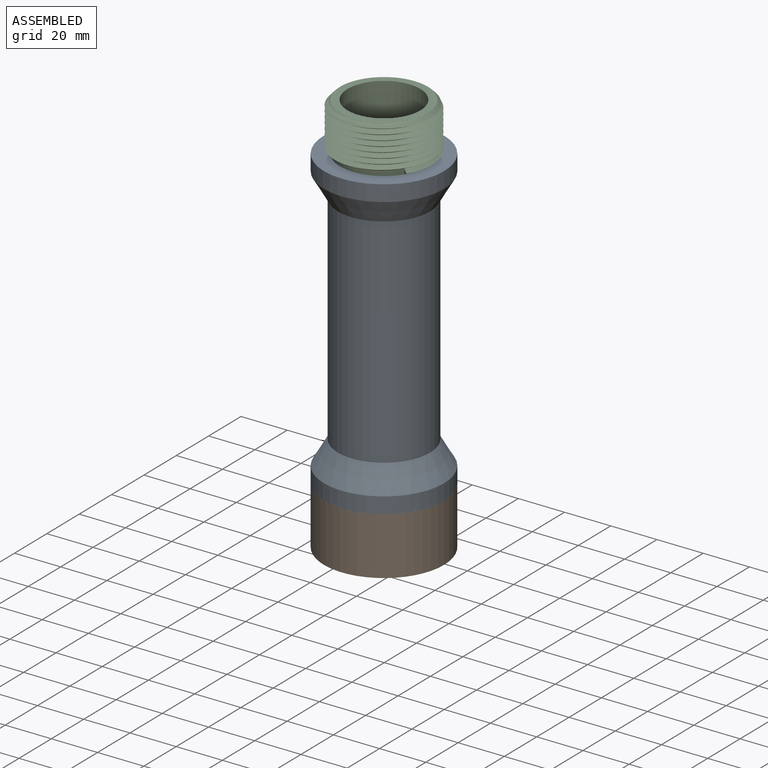
[diagram: assembled view]
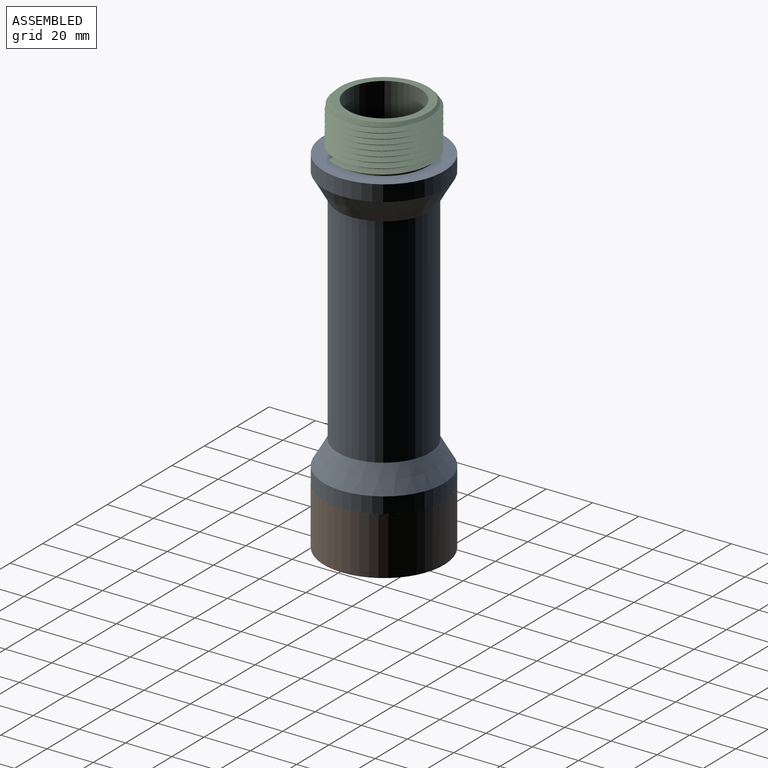
[diagram: assembled view, second angle]
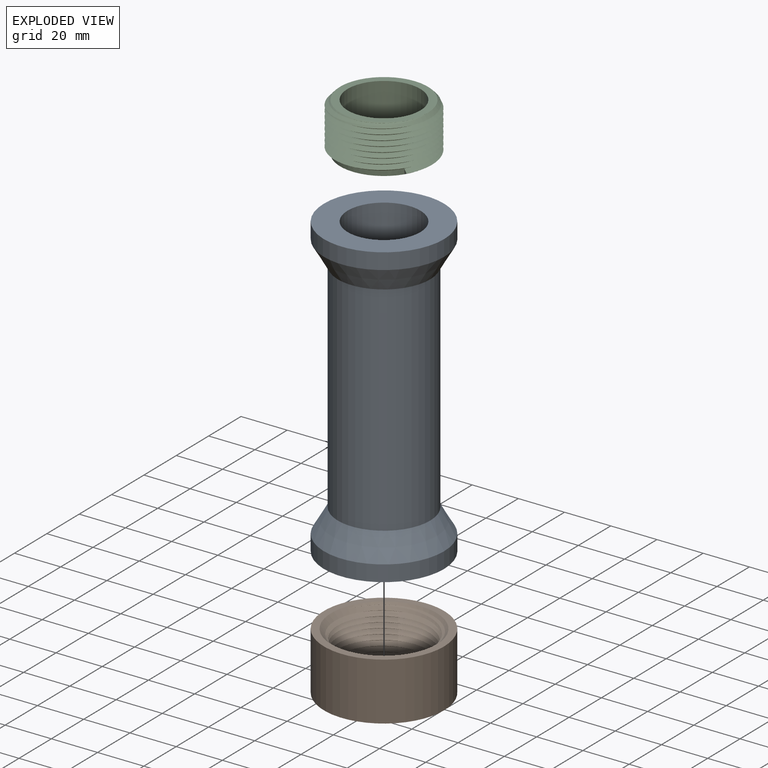
[diagram: exploded view]
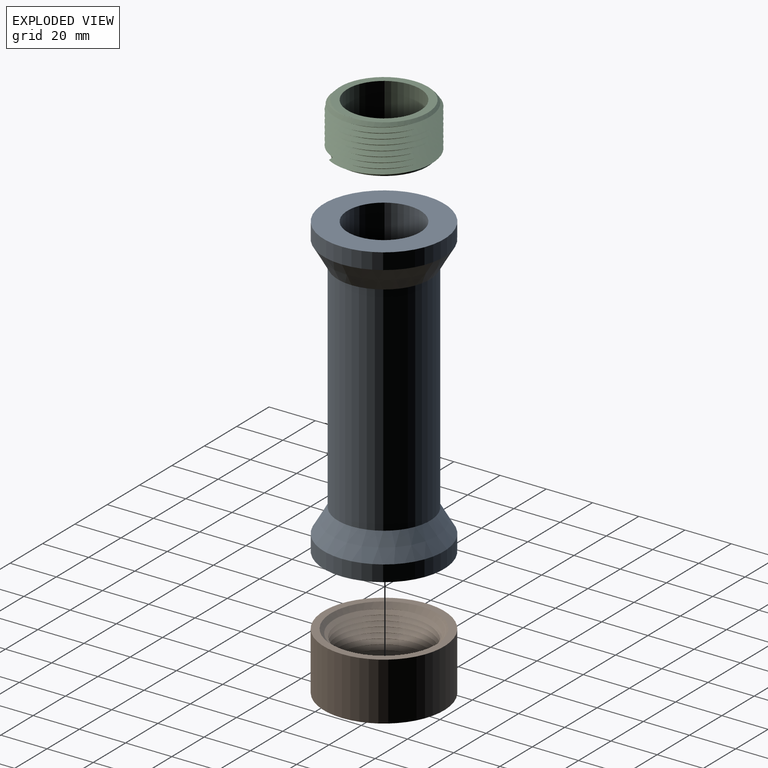
[diagram: exploded view, second angle]
ASSEMBLY  parts=3 mates=2
PART A: 9 faces, bbox 52x52x129 mm
  f0: cylinder r=26mm len=52mm, axis (0,0,-1), area 1131.8mm2, adj f3,f5
  f1: cylinder r=26mm len=52mm, axis (0,0,-1), area 1131.8mm2, adj f4,f6
  f2: cylinder r=15.75mm len=125mm, axis (0,0,-1), area 12370mm2, adj f3,f8
  f3: plane 52x52mm, normal (0,0,1), area 1344.4mm2, adj f0,f2
  f4: plane 52x52mm, normal (0,0,-1), area 898.3mm2, adj f1,f8
  f5: cone r=30mm half-angle=30deg, axis (0,0,1), area 1734.2mm2, adj f0,f7
  f6: cone r=20mm half-angle=30deg, axis (0,0,-1), area 1734.2mm2, adj f1,f7
  f7: cylinder r=20mm len=94.36mm, axis (0,0,1), area 11857.5mm2, adj f5,f6
  f8: cone r=19.75mm half-angle=45deg, axis (0,0,-1), area 630.9mm2, adj f2,f4
PART B: 10 faces, bbox 52x52x26.2 mm
  f0: cylinder r=19.85mm len=39.7mm, axis (0,0,-1), area 36.5mm2, adj f4,f7,f8,f9
  f1: cylinder r=26mm len=52mm, axis (0,0,-1), area 4084.1mm2, adj f2,f3
  f2: plane 52x52mm, normal (0,0,1), area 483.4mm2, adj f1,f6
  f3: plane 52x52mm, normal (0,0,-1), area 483.4mm2, adj f1,f5
  f4: cone r=22.85mm half-angle=45deg, axis (0,0,-1), area 0mm2, adj f0,f5,f8
  f5: cone r=22.85mm half-angle=45deg, axis (0,0,-1), area 359.8mm2, adj f3,f4,f8,f9
  f6: cone r=19.85mm half-angle=45deg, axis (0,0,1), area 358.9mm2, adj f2,f7,f8,f9
  f7: cone r=19.85mm half-angle=45deg, axis (0,0,1), area 0.9mm2, adj f0,f6,f8,f9
  f8: bspline ~50.38x48.07mm, area 3114.7mm2, adj f0,f4,f5,f6,f7,f9
  f9: bspline ~50.38x48.07mm, area 3128.7mm2, adj f0,f5,f6,f7,f8
PART C: 8 faces, bbox 42.2x48.7x22.3 mm
  f0: bspline ~48.73x42.2mm, area 2538.6mm2, adj f1,f3,f5,f6,f7
  f1: bspline ~48.73x42.2mm, area 2379.8mm2, adj f0,f3,f6,f7
  f2: cylinder r=15.75mm len=31.5mm, axis (0,0,-1), area 2078.2mm2, adj f4,f5
  f3: cylinder r=19mm len=38mm, axis (0,0,-1), area 130.7mm2, adj f0,f1,f4,f5,f6
  f4: plane 38x38mm, normal (0,0,1), area 354.8mm2, adj f2,f3,f7
  f5: plane 38x38mm, normal (0,0,-1), area 354.8mm2, adj f0,f2,f3
  f6: plane 2.3x1.77mm, normal (-0.54,-0.84,0), area 2.4mm2, adj f0,f1,f3
  f7: cone r=19mm half-angle=45deg, axis (0,0,-1), area 183.1mm2, adj f0,f1,f4
PLACE A t=(-22.11,-5.65,-42.67)mm fixed
PLACE B t=(-22.11,-5.65,-67.67)mm
PLACE C t=(-22.11,-5.65,86.33)mm
MATE fastened A.f0 <-> B.f1  axis (0,0,-1) through (-22.11,-5.65,-42.67)mm
MATE fastened A.f2 <-> C.f2  axis (0,0,1) through (-22.11,-5.65,86.33)mm
